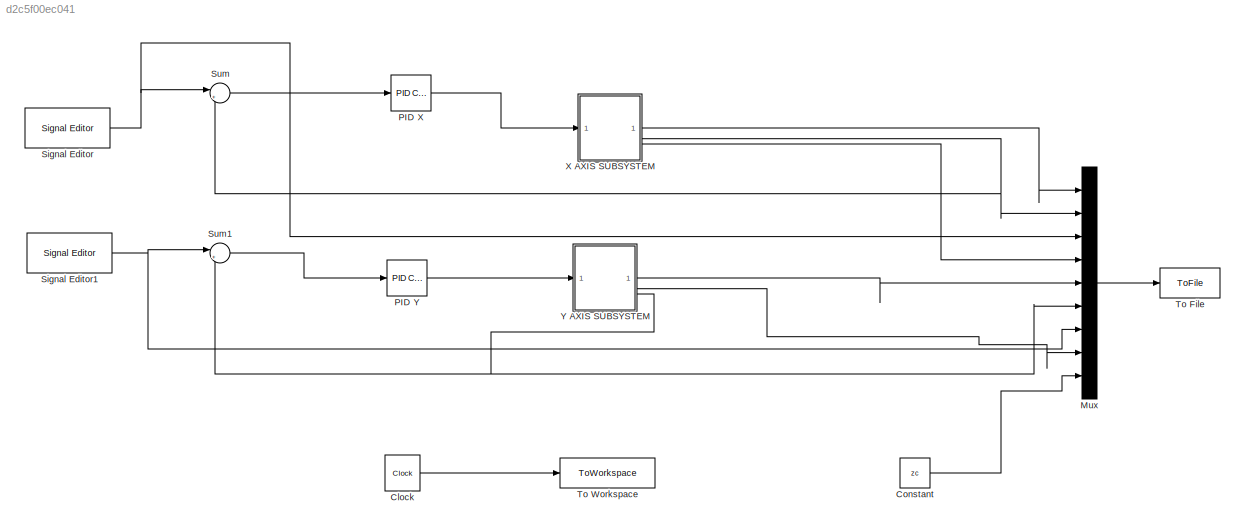
MODEL slx_d2c5f00ec041
KIND model
CONFIG AbsTol = auto
CONFIG EnableMultiTasking = off
CONFIG FixedStep = t_step
CONFIG MaxStep = auto
CONFIG MinStep = auto
CONFIG RelTol = 1e-3
CONFIG SampleTimeConstraint = Unconstrained
CONFIG SolverName = ode4
CONFIG StartTime = 0.0
CONFIG StopTime = t_stop
BLOCK [Clock] Clock
  DisplayTime = on
BLOCK [Constant] Constant
  Value = zc
BLOCK [Mux] Mux
  DisplayOption = bar
  Inputs = 9
BLOCK [Reference] PID X  REF=slpidlib/PID Controller
  SourceBlock = slpidlib/PID Controller
  SourceType = PID 1dof
BLOCK [Reference] PID Y  REF=slpidlib/PID Controller
  LibrarySourceBlock = simulink/Continuous/PID Controller
  SourceBlock = slpidlib/PID Controller
  SourceType = PID 1dof
BLOCK [Reference] Signal Editor  REF=SignalEditorBlockLib/Signal Editor
  SourceBlock = SignalEditorBlockLib/Signal Editor
  SourceType = SignalEditor
  UserDataPersistent = on
BLOCK [Reference] Signal Editor1  REF=SignalEditorBlockLib/Signal Editor
  LibrarySourceBlock = simulink/Sources/Signal Editor
  SourceBlock = SignalEditorBlockLib/Signal Editor
  SourceType = SignalEditor
  UserDataPersistent = on
BLOCK [Sum] Sum
  Inputs = |+-
BLOCK [Sum] Sum1
  Inputs = |+-
BLOCK [ToFile] To File
  Filename = output.mat
BLOCK [ToWorkspace] To Workspace
  FixptAsFi = on
  MaxDataPoints = inf
  SampleTime = -1
  SaveFormat = Timeseries
  VariableName = simout
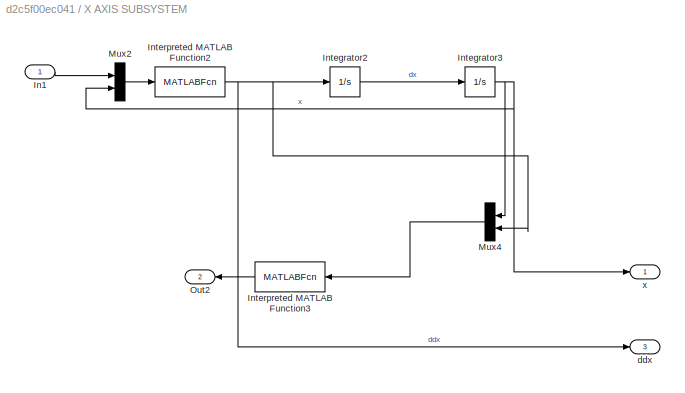
BLOCK [SubSystem] X AXIS SUBSYSTEM
BLOCK [Inport] X AXIS SUBSYSTEM/In1
BLOCK [Integrator] X AXIS SUBSYSTEM/Integrator2
  InitialCondition = dx_ini
BLOCK [Integrator] X AXIS SUBSYSTEM/Integrator3
  InitialCondition = x_ini
BLOCK [MATLABFcn] X AXIS SUBSYSTEM/Interpreted MATLAB Function2
  MATLABFcn = mf2_zmp
BLOCK [MATLABFcn] X AXIS SUBSYSTEM/Interpreted MATLAB Function3
  MATLABFcn = mf_zmp
BLOCK [Mux] X AXIS SUBSYSTEM/Mux2
  DisplayOption = bar
  Inputs = 2
  NameLocation = top
BLOCK [Mux] X AXIS SUBSYSTEM/Mux4
  DisplayOption = bar
  Inputs = 2
BLOCK [Outport] X AXIS SUBSYSTEM/Out2
  Port = 2
BLOCK [Outport] X AXIS SUBSYSTEM/ddx
  Port = 3
BLOCK [Outport] X AXIS SUBSYSTEM/x
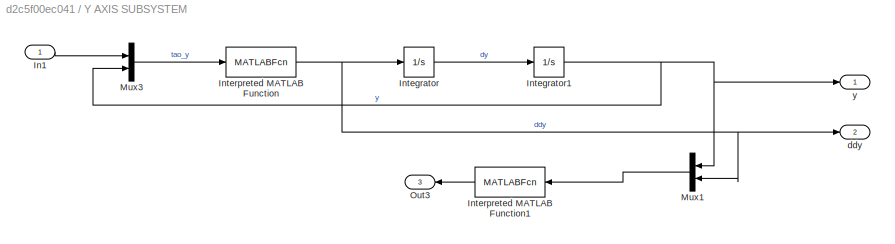
BLOCK [SubSystem] Y AXIS SUBSYSTEM
BLOCK [Inport] Y AXIS SUBSYSTEM/In1
BLOCK [Integrator] Y AXIS SUBSYSTEM/Integrator
BLOCK [Integrator] Y AXIS SUBSYSTEM/Integrator1
BLOCK [MATLABFcn] Y AXIS SUBSYSTEM/Interpreted MATLAB Function
  MATLABFcn = mf3_zmp
BLOCK [MATLABFcn] Y AXIS SUBSYSTEM/Interpreted MATLAB Function1
  MATLABFcn = mf4_zmp
BLOCK [Mux] Y AXIS SUBSYSTEM/Mux1
  DisplayOption = bar
  Inputs = 2
BLOCK [Mux] Y AXIS SUBSYSTEM/Mux3
  DisplayOption = bar
  Inputs = 2
BLOCK [Outport] Y AXIS SUBSYSTEM/Out3
  Port = 3
BLOCK [Outport] Y AXIS SUBSYSTEM/ddy
  Port = 2
BLOCK [Outport] Y AXIS SUBSYSTEM/y
LINE Clock:1 -> To Workspace:1
LINE Constant:1 -> Mux:9
LINE Mux:1 -> To File:1
LINE PID X:1 -> X AXIS SUBSYSTEM:1
LINE PID Y:1 -> Y AXIS SUBSYSTEM:1
NET Signal Editor1:1 -> Mux:7, Sum1:1
NET Signal Editor:1 -> Mux:3, Sum:1
LINE Sum1:1 -> PID Y:1
LINE Sum:1 -> PID X:1
LINE X AXIS SUBSYSTEM/In1:1 -> X AXIS SUBSYSTEM/Mux2:1
LINE X AXIS SUBSYSTEM/Integrator2:1 -> X AXIS SUBSYSTEM/Integrator3:1
NET X AXIS SUBSYSTEM/Integrator3:1 -> X AXIS SUBSYSTEM/Mux2:2, X AXIS SUBSYSTEM/Mux4:1, X AXIS SUBSYSTEM/x:1
NET X AXIS SUBSYSTEM/Interpreted MATLAB Function2:1 -> X AXIS SUBSYSTEM/Integrator2:1, X AXIS SUBSYSTEM/Mux4:2, X AXIS SUBSYSTEM/ddx:1
LINE X AXIS SUBSYSTEM/Interpreted MATLAB Function3:1 -> X AXIS SUBSYSTEM/Out2:1
LINE X AXIS SUBSYSTEM/Mux2:1 -> X AXIS SUBSYSTEM/Interpreted MATLAB Function2:1
LINE X AXIS SUBSYSTEM/Mux4:1 -> X AXIS SUBSYSTEM/Interpreted MATLAB Function3:1
LINE X AXIS SUBSYSTEM:1 -> Mux:1
NET X AXIS SUBSYSTEM:2 -> Mux:2, Sum:2
LINE X AXIS SUBSYSTEM:3 -> Mux:4
LINE Y AXIS SUBSYSTEM/In1:1 -> Y AXIS SUBSYSTEM/Mux3:1
NET Y AXIS SUBSYSTEM/Integrator1:1 -> Y AXIS SUBSYSTEM/Mux1:1, Y AXIS SUBSYSTEM/Mux3:2, Y AXIS SUBSYSTEM/y:1
LINE Y AXIS SUBSYSTEM/Integrator:1 -> Y AXIS SUBSYSTEM/Integrator1:1
LINE Y AXIS SUBSYSTEM/Interpreted MATLAB Function1:1 -> Y AXIS SUBSYSTEM/Out3:1
NET Y AXIS SUBSYSTEM/Interpreted MATLAB Function:1 -> Y AXIS SUBSYSTEM/Integrator:1, Y AXIS SUBSYSTEM/Mux1:2, Y AXIS SUBSYSTEM/ddy:1
LINE Y AXIS SUBSYSTEM/Mux1:1 -> Y AXIS SUBSYSTEM/Interpreted MATLAB Function1:1
LINE Y AXIS SUBSYSTEM/Mux3:1 -> Y AXIS SUBSYSTEM/Interpreted MATLAB Function:1
LINE Y AXIS SUBSYSTEM:1 -> Mux:5
LINE Y AXIS SUBSYSTEM:2 -> Mux:8
NET Y AXIS SUBSYSTEM:3 -> Mux:6, Sum1:2
note: NET lines group one-source signal fan-out (src -> all destinations, sorted); 1:1 wires keep LINE
